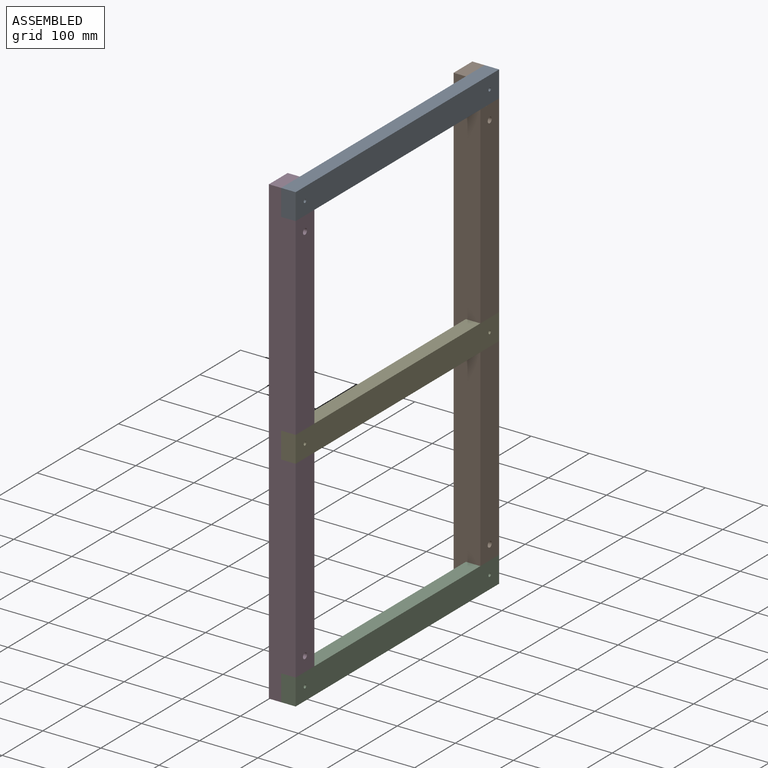
[diagram: assembled view]
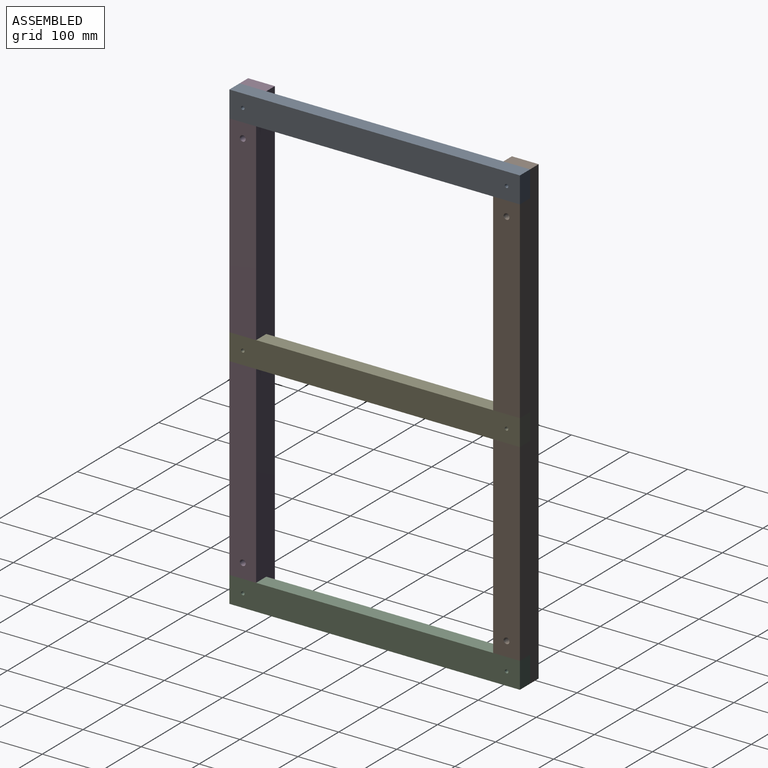
[diagram: assembled view, second angle]
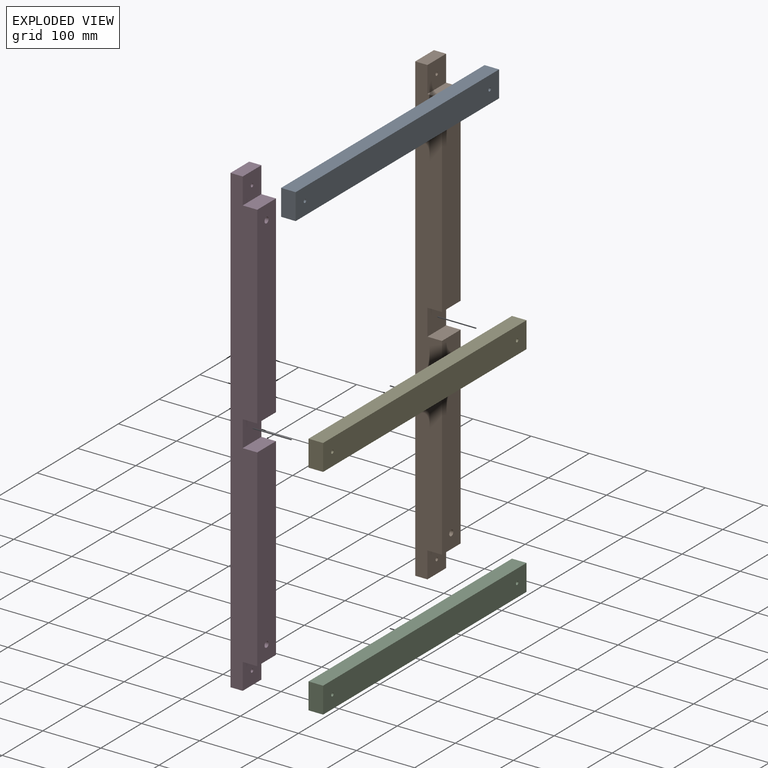
[diagram: exploded view]
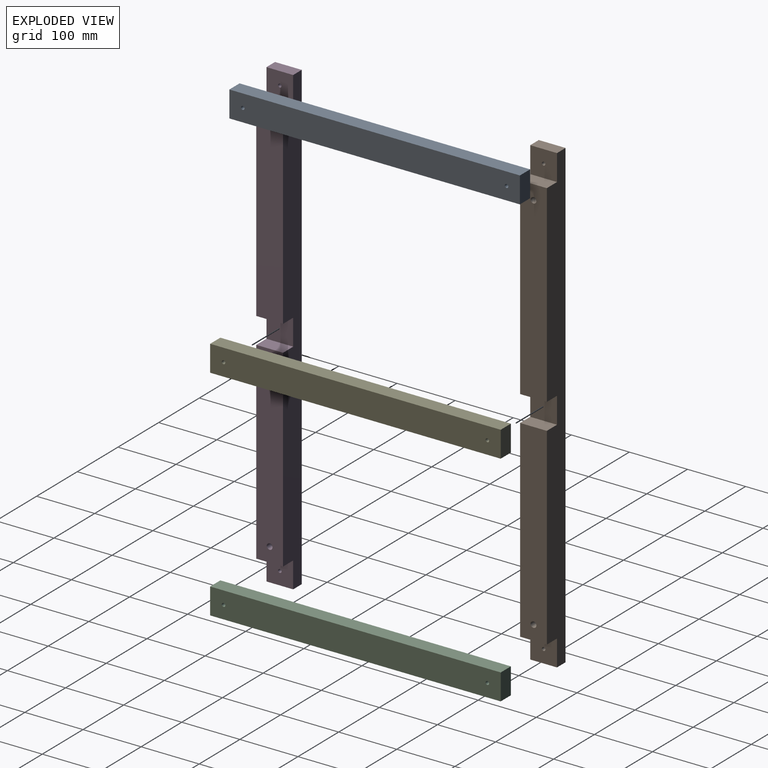
[diagram: exploded view, second angle]
ASSEMBLY  parts=5 mates=3
PART A: 8 faces, bbox 25x500x45 mm
  f0: plane 500x25mm, normal (0,0,-1), area 12500mm2, adj f1,f3,f4,f5
  f1: plane 500x45mm, normal (1,0,0), area 22443.5mm2, adj f0,f2,f4,f5,f6,f7
  f2: plane 500x25mm, normal (0,0,1), area 12500mm2, adj f1,f3,f4,f5
  f3: plane 500x45mm, normal (-1,0,0), area 22443.5mm2, adj f0,f2,f4,f5,f6,f7
  f4: plane 45x25mm, normal (0,1,0), area 1125mm2, adj f0,f1,f2,f3
  f5: plane 45x25mm, normal (0,-1,0), area 1125mm2, adj f0,f1,f2,f3
  f6: cylinder r=3mm len=25mm, axis (1,0,0), area 471.2mm2, adj f1,f3
  f7: cylinder r=3mm len=25mm, axis (1,0,0), area 471.2mm2, adj f1,f3
PART B: 20 faces, bbox 46x46x800 mm
  f0: plane 800x46mm, normal (0,1,0), area 36743.5mm2, adj f3,f4,f5,f6,f18,f19
  f1: plane 332.5x46mm, normal (0,-1,0), area 15216.5mm2, adj f3,f4,f7,f10,f16
  f2: plane 332.5x46mm, normal (0,-1,0), area 15216.5mm2, adj f3,f4,f8,f12,f14
  f3: plane 800x46mm, normal (1,0,0), area 33425mm2, adj f0,f1,f2,f5,f6,f7,f8,f9
  f4: plane 800x46mm, normal (-1,0,0), area 33425mm2, adj f0,f1,f2,f5,f6,f7,f8,f9
  f5: plane 46x21mm, normal (0,0,1), area 966mm2, adj f0,f3,f4,f13
  f6: plane 46x21mm, normal (0,0,-1), area 966mm2, adj f0,f3,f4,f11
  f7: plane 46x25mm, normal (0,0,1), area 1150mm2, adj f1,f3,f4,f9
  f8: plane 46x25mm, normal (0,0,-1), area 1150mm2, adj f2,f3,f4,f9
  f9: plane 46x45mm, normal (0,-1,0), area 2070mm2, adj f3,f4,f7,f8
  f10: plane 46x25mm, normal (0,0,-1), area 1150mm2, adj f1,f3,f4,f11
  f11: plane 46x45mm, normal (0,-1,0), area 2041.7mm2, adj f3,f4,f6,f10,f19
  f12: plane 46x25mm, normal (0,0,1), area 1150mm2, adj f2,f3,f4,f13
  f13: plane 46x45mm, normal (0,-1,0), area 2041.7mm2, adj f3,f4,f5,f12,f18
  f14: cylinder r=5mm len=25mm, axis (0,-1,0), area 785.4mm2, adj f2,f15
  f15: plane 10x10mm, normal (0,-1,0), area 78.5mm2, adj f14
  f16: cylinder r=5mm len=25mm, axis (0,-1,0), area 785.4mm2, adj f1,f17
  f17: plane 10x10mm, normal (0,-1,0), area 78.5mm2, adj f16
  f18: cylinder r=3mm len=21mm, axis (0,-1,0), area 395.8mm2, adj f0,f13
  f19: cylinder r=3mm len=21mm, axis (0,-1,0), area 395.8mm2, adj f0,f11
PART C: same geometry as A
PART D: same geometry as B
PART E: same geometry as A
PLACE A t=(-49.5,46,777.5)mm
PLACE B rot(axis=(0,0,1),90deg) t=(-60,523,0)mm
PLACE C t=(-49.5,46,22.5)mm
PLACE D rot(axis=(0,0,1),90deg) t=(-60,69,0)mm
PLACE E t=(-49.5,46,400)mm
MATE planar A.f7 <-> D.f18  axis (-1,0,0) through (-62,69,777.5)mm
MATE planar A.f5 <-> D.f4  axis (0,-1,0) through (-62,46,777.5)mm
MATE planar A.f3 <-> D.f13  axis (-1,0,0) through (-62,46,800)mm
